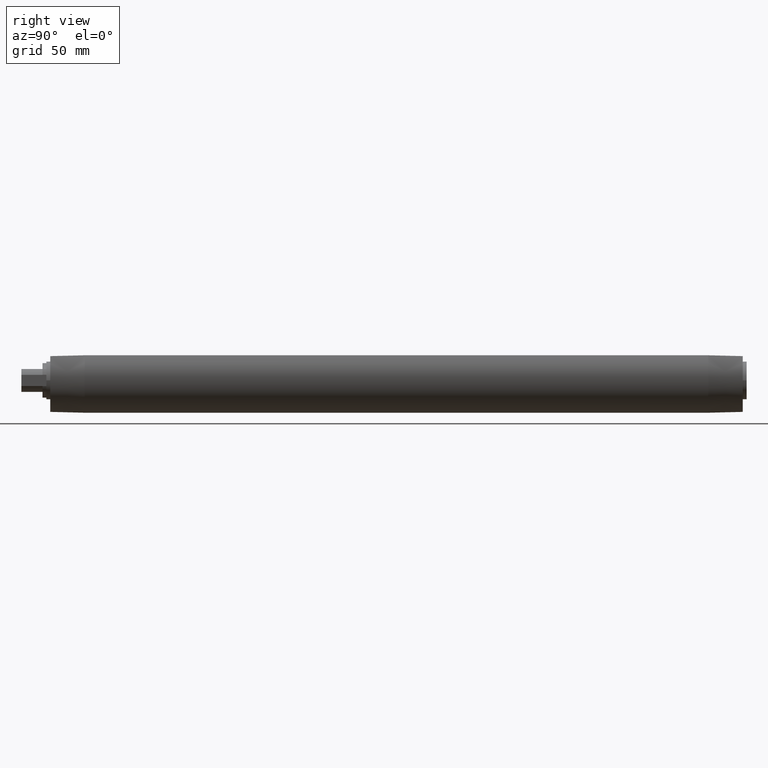
[diagram: clean part render]
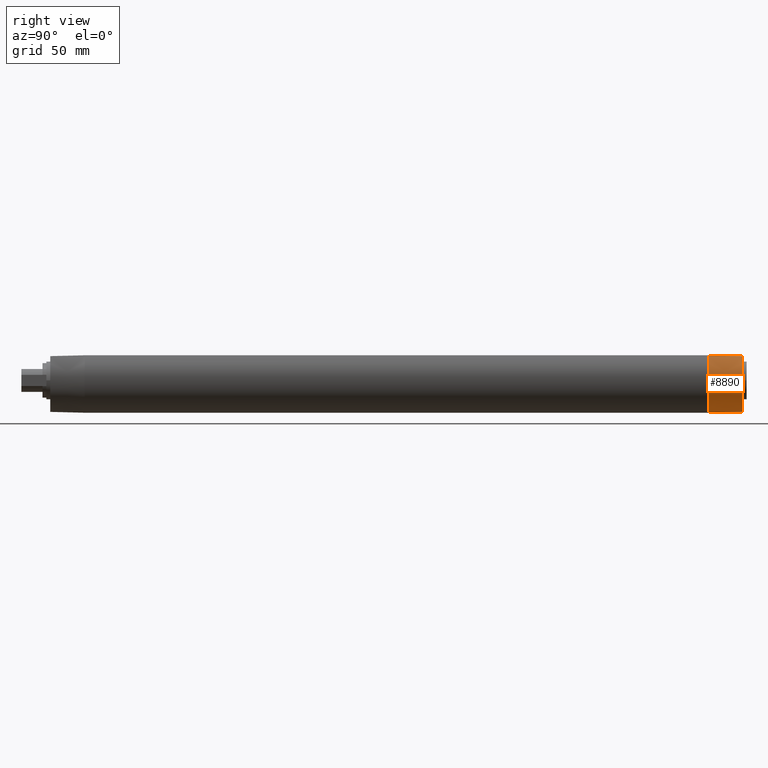
[diagram: same view with one face highlighted and labeled with its STEP entity id]
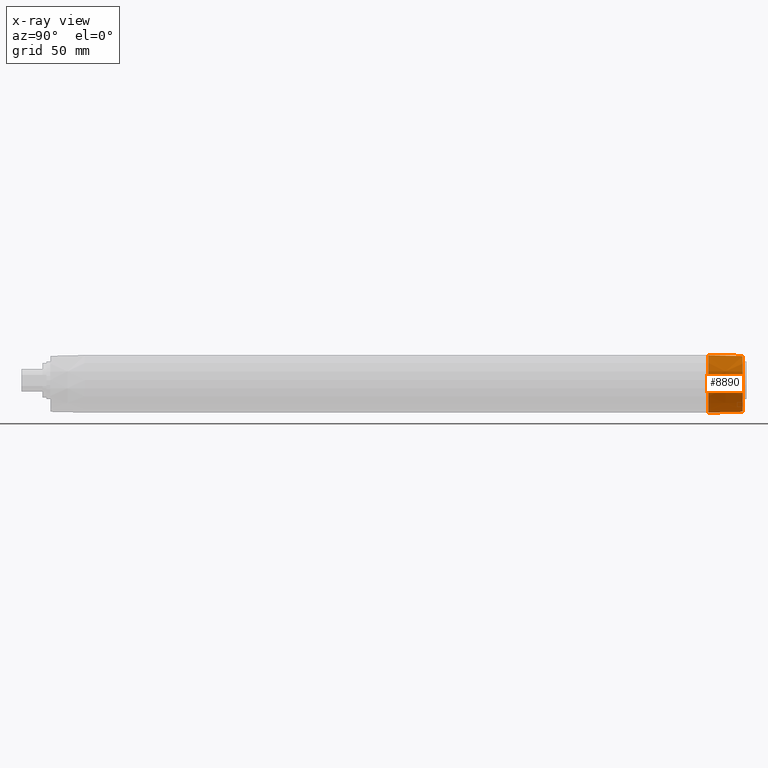
[diagram: x-ray of the same camera — body ghosted, the highlighted face saturated]
A machine part, right view. The second image highlights one B-rep face of the part: STEP entity #8890.
The next image is the same camera in x-ray: the body ghosted, the highlighted face saturated — about 0% of this face is hidden behind the body in this view.
In plain terms, the highlighted conical surface has half-angle 1.4 deg.
Its self-contained STEP definition (entity closure, byte-faithful):
#800=CARTESIAN_POINT('',(-16.5698521417664,11.2,162.5));
#810=VERTEX_POINT('',#800);
#2130=CARTESIAN_POINT('',(-16.3345515631189,10.7600894754653,180.5));
#2140=VERTEX_POINT('',#2130);
#2170=CARTESIAN_POINT('',(-16.3345515631189,10.7600894754653,180.5));
#2180=CARTESIAN_POINT('',(-16.3608983060847,10.8089942744988,
178.498942208682));
#2190=CARTESIAN_POINT('',(-16.4133022089879,10.9067866877429,
174.497529784517));
#2200=CARTESIAN_POINT('',(-16.4917309964871,11.0534235313815,
168.497529697487));
#2210=CARTESIAN_POINT('',(-16.5439069962023,11.1511469061598,
164.498942148642));
#2220=CARTESIAN_POINT('',(-16.5698521417664,11.2,162.5));
#2230=B_SPLINE_CURVE_WITH_KNOTS('',3,(#2170,#2180,#2190,#2200,#2210,
#2220),.UNSPECIFIED.,.F.,.F.,(4,1,1,4),(0.,0.333333333333333,
0.666666666666667,1.),.UNSPECIFIED.);
#2240=EDGE_CURVE('',#2140,#810,#2230,.T.);
#4410=CARTESIAN_POINT('',(0.,0.,162.5));
#4420=DIRECTION('',(0.,0.,1.));
#4430=DIRECTION('',(-1.,1.22464679914735E-16,0.));
#4440=AXIS2_PLACEMENT_3D('',#4410,#4420,#4430);
#4450=CIRCLE('',#4440,20.);
#4460=CARTESIAN_POINT('',(-6.95970545353754,-18.75,162.5));
#4470=VERTEX_POINT('',#4460);
#4480=EDGE_CURVE('',#810,#4470,#4450,.T.);
#6030=CARTESIAN_POINT('',(0.,0.,180.5));
#6040=DIRECTION('',(0.,0.,1.));
#6050=DIRECTION('',(-1.,1.18586224797646E-15,0.));
#6060=AXIS2_PLACEMENT_3D('',#6030,#6040,#6050);
#6070=CIRCLE('',#6060,19.5600894754653);
#6080=CARTESIAN_POINT('',(-6.88024154290118,-18.3100894754653,180.5));
#6090=VERTEX_POINT('',#6080);
#6100=EDGE_CURVE('',#2140,#6090,#6070,.T.);
#8560=CARTESIAN_POINT('',(-6.95970545353754,-18.75,162.5));
#8570=CARTESIAN_POINT('',(-6.95092706531731,-18.7011240029043,
164.499879290574));
#8580=CARTESIAN_POINT('',(-6.93321837899439,-18.60337005467,
168.499717826101));
#8590=CARTESIAN_POINT('',(-6.90673038441121,-18.4567332131699,
174.499717825632));
#8600=CARTESIAN_POINT('',(-6.88912238975118,-18.358971372612,
178.499879294609));
#8610=CARTESIAN_POINT('',(-6.88024154290119,-18.3100894754653,180.5));
#8620=B_SPLINE_CURVE_WITH_KNOTS('',3,(#8560,#8570,#8580,#8590,#8600,
#8610),.UNSPECIFIED.,.F.,.F.,(4,1,1,4),(0.,0.333333333333333,
0.666666666666667,1.),.UNSPECIFIED.);
#8630=EDGE_CURVE('',#4470,#6090,#8620,.T.);
#8780=CARTESIAN_POINT('',(0.,0.,939.930820419089));
#8790=DIRECTION('',(0.,0.,-1.));
#8800=DIRECTION('',(1.,0.,0.));
#8810=AXIS2_PLACEMENT_3D('',#8780,#8790,#8800);
#8820=CONICAL_SURFACE('',#8810,1.,0.0244346095279206);
#8830=ORIENTED_EDGE('',*,*,#2240,.T.);
#8840=ORIENTED_EDGE('',*,*,#6100,.F.);
#8850=ORIENTED_EDGE('',*,*,#8630,.T.);
#8860=ORIENTED_EDGE('',*,*,#4480,.T.);
#8870=EDGE_LOOP('',(#8860,#8850,#8840,#8830));
#8880=FACE_OUTER_BOUND('',#8870,.T.);
#8890=ADVANCED_FACE('',(#8880),#8820,.T.);